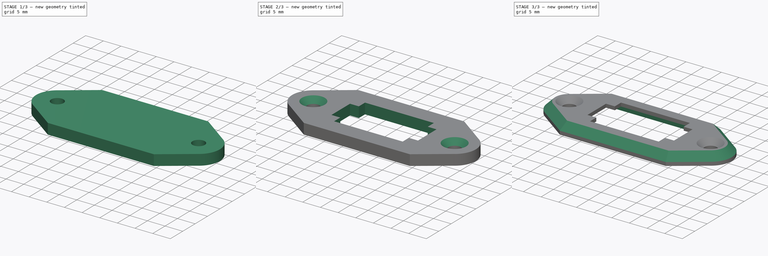
[diagram: build sequence overview — one tinted view per stage of 3, left to right]
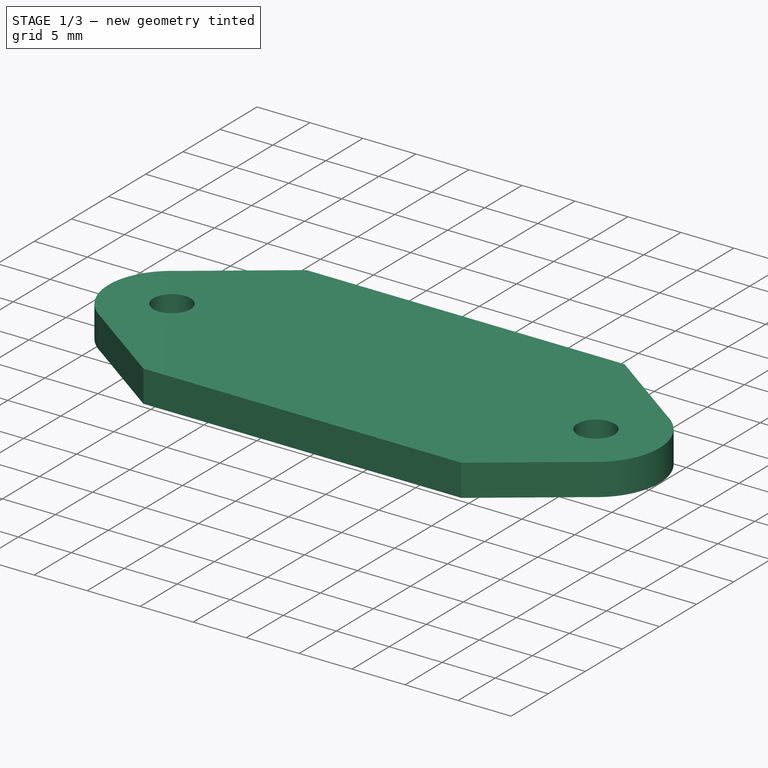
[diagram: stage 1 of 3 — iso view after this stage's code; geometry added in this stage tinted green]
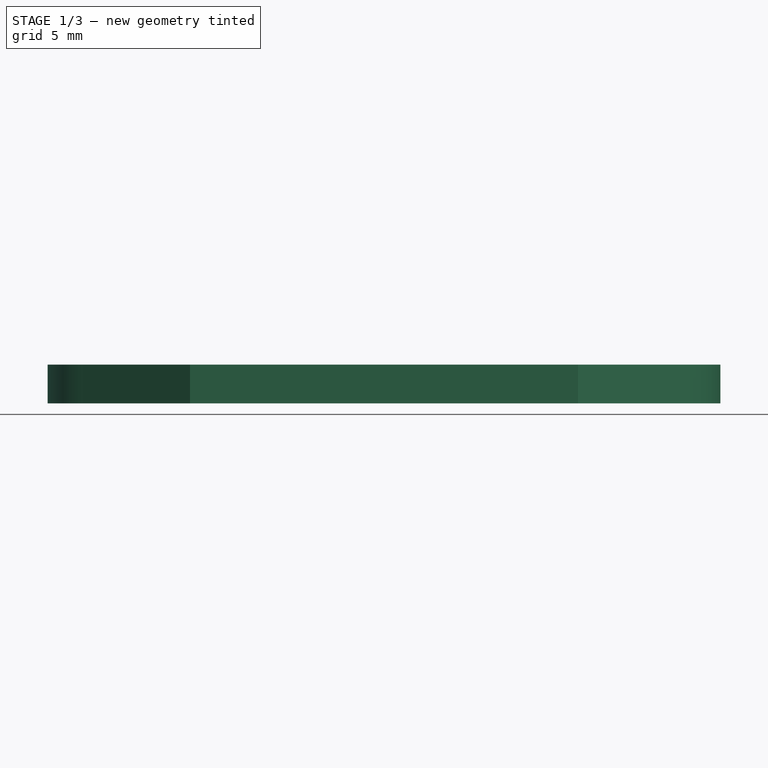
[diagram: stage 1 of 3 — front view after this stage's code; geometry added in this stage tinted green]
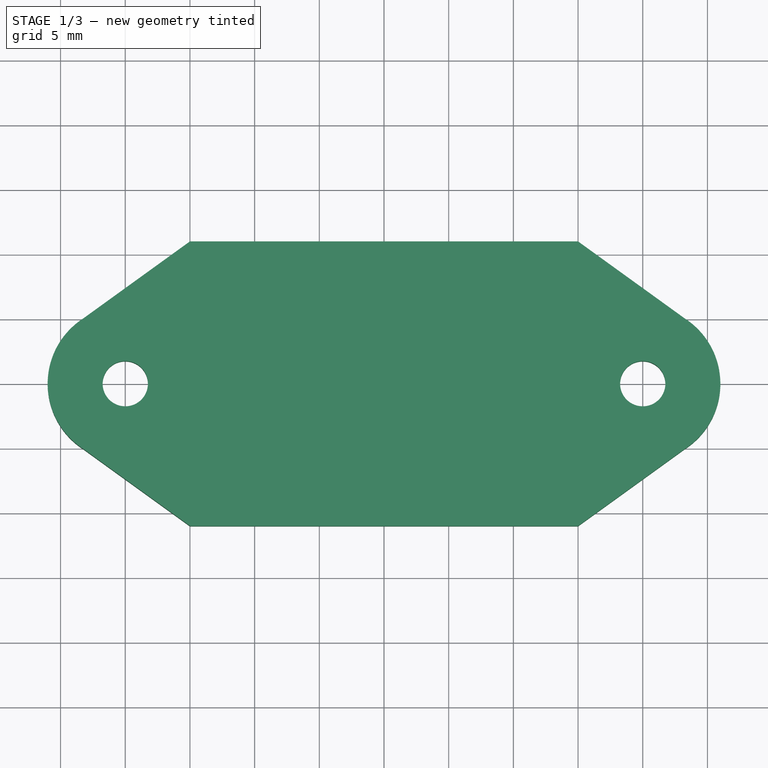
[diagram: stage 1 of 3 — top view after this stage's code; geometry added in this stage tinted green]
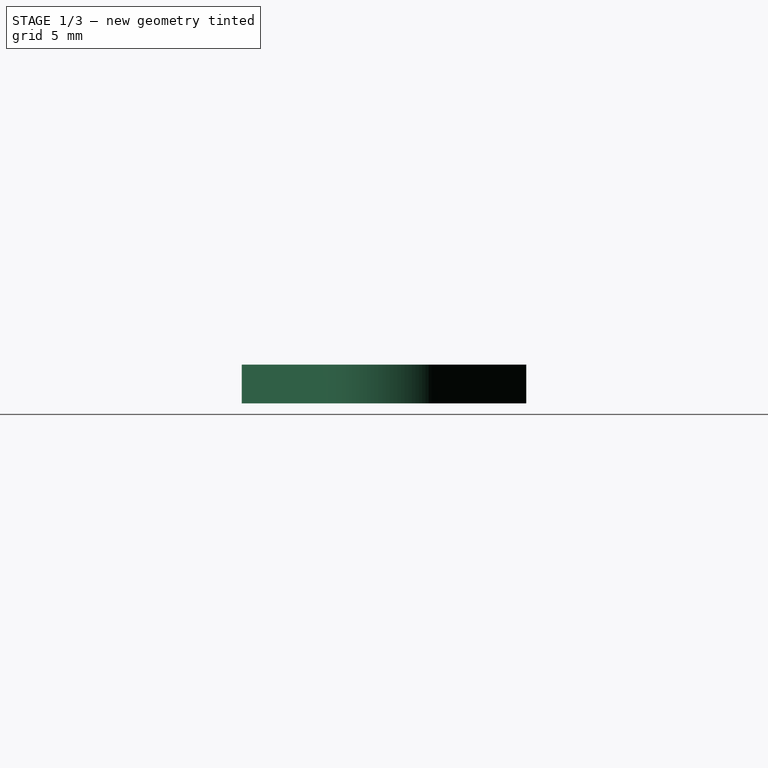
[diagram: stage 1 of 3 — right view after this stage's code; geometry added in this stage tinted green]
FCSTD DOCUMENT  (FreeCAD 0.21R33771 (Git))
Label: mounting_plate_snap_power_C8
License: All rights reserved
LicenseURL: http://en.wikipedia.org/wiki/All_rights_reserved
objects: Sketcher::SketchObject×4, PartDesign::Pocket×3, PartDesign::Chamfer×2, Spreadsheet::Sheet×1, PartDesign::Pad×1, PartDesign::Plane×1, PartDesign::Body×1
note: 18 computed .brp shape members not serialized (recipe doc carries the construction recipe); baked Part::Feature solids carry a one-line shape summary decoded from their .brp

FEATURE [Spreadsheet::Sheet] Spreadsheet
  cells = A1='plate centre X; B1(plate_centre_X)=30; C1='plate hole pitch; D1(plate_hole_pitch)=40; E1='Panel cutout inner X; F1(cutout_inner_X)=19.5; G1='panel cutout thin X; H1(thin_cutout_X)=30; A2='plate Y; B2(plate_Y)=22; C2='plate hole edge; D2(plate_hole_edge)=6; E2='Panel cutout outer X; F2(cutout_outer_X)=24.5; G2='panel cutout thin Y; H2(thin_cutout_Y)=16; A3='plate Z; B3(plate_Z)=3; C3='plate ear angle; D3(plate_ear_angle)=115; E3='Panel cutout inner Y; F3(cutout_inner_Y)=7.5; G3='panel cutout thin Z; H3(thin_cutout_Z)=1; A4='plate chamfer; B4(plate_chamfer)=2; C4='hole chamfer; D4(plate_hole_chamfer)=1.5; E4='Panel cutout outer Y; F4(cutout_outer_Y)=12.5; G7='complete thinning Z; H7(thin_pocket_depth)==plate_Z - thin_cutout_Z
FEATURE [Sketcher::SketchObject] Sketch
  FullyConstrained = true
  MapMode = 5
  Support = -> [XY_Plane]
  expr: Constraints[12] = Spreadsheet.plate_hole_edge
  expr: Constraints[13] = Spreadsheet.plate_ear_angle
  expr: Constraints[19] = Spreadsheet.plate_ear_angle
  expr: Constraints[3] = <<Spreadsheet>>.plate_Y
  expr: Constraints[4] = Spreadsheet.plate_centre_X
  expr: Constraints[7] = Spreadsheet.plate_hole_pitch
  sketch-geometry (9):
    g0: LineSegment StartX=-15 StartY=11 StartZ=0 EndX=15 EndY=11 EndZ=0
    g1: LineSegment StartX=-15 StartY=-11 StartZ=0 EndX=15 EndY=-11 EndZ=0
    g2: LineSegment StartX=-20 StartY=0 StartZ=0 EndX=20 EndY=0 EndZ=0
    g3: ArcOfCircle CenterX=-20 CenterY=0 CenterZ=0 NormalX=0 NormalY=0 NormalZ=1 AngleXU=0 Radius=6 StartAngle=2.13803 EndAngle=4.14516
    g4: LineSegment StartX=-15 StartY=11 StartZ=0 EndX=-23.2238 EndY=5.06035 EndZ=0
    g5: LineSegment StartX=-15 StartY=-11 StartZ=0 EndX=-23.2238 EndY=-5.06035 EndZ=0
    g6: ArcOfCircle CenterX=20 CenterY=0 CenterZ=0 NormalX=0 NormalY=0 NormalZ=1 AngleXU=0 Radius=6 StartAngle=5.27962 EndAngle=7.28675
    g7: LineSegment StartX=15 StartY=11 StartZ=0 EndX=23.2238 EndY=5.06035 EndZ=0
    g8: LineSegment StartX=23.2238 StartY=-5.06035 StartZ=0 EndX=15 EndY=-11 EndZ=0
  constraints (24):
    c: Symmetric(g0,g0,g-2)
    c: Symmetric(g1,g1,g-2)
    c: Symmetric(g0,g1,g-1)
    c: Distance(g0,g1) = 22
    c: Distance(g0) = 30
    c: PointOnObject(g2,g-1)
    c: Symmetric(g2,g2,g-1)
    c: Distance(g2,g2) = 40
    c: Coincident(g3,g2)
    c: Vertical(g3,g3)
    c: Coincident(g4,g0)
    c: Coincident(g4,g3)
    c: Radius(g3) = 6
    c: Angle(g3) = 2.00713
    c: Coincident(g5,g1)
    c: Coincident(g5,g3)
    c: Coincident(g6,g2)
    c: Vertical(g6,g6)
    c: Equal(g6,g3)
    c: Angle(g6) = 2.00713
    c: Coincident(g7,g0)
    c: Coincident(g7,g6)
    c: Coincident(g8,g6)
    c: Coincident(g8,g1)
FEATURE [PartDesign::Pad] Pad
  Direction = (0,0,1)
  Length = 3
  Length2 = 10
  Profile = -> Sketch
  ReferenceAxis = -> Sketch [N_Axis]
  Type = 0
  expr: Length = 3
FEATURE [PartDesign::Plane] DatumPlane  label="top_plate"
  AttachmentOffset = pos=(0,0,3) rot=(0,0,1;0rad)
  Length = 62.1162
  MapMode = 5
  Placement = pos=(0,0,3) rot=(0,0,1;0rad)
  ResizeMode = 0
  Support = -> [XY_Plane]
  Width = 60.1907
FEATURE [Sketcher::SketchObject] Sketch001
  FullyConstrained = true
  MapMode = 5
  Placement = pos=(0,0,3) rot=(0,0,1;0rad)
  Support = -> [DatumPlane]
  sketch-geometry (3):
    g0: LineSegment StartX=-20 StartY=0 StartZ=0 EndX=20 EndY=0 EndZ=0
    g1: Circle CenterX=-20 CenterY=0 CenterZ=0 NormalX=0 NormalY=0 NormalZ=1 AngleXU=0 Radius=1.75
    g2: Circle CenterX=20 CenterY=0 CenterZ=0 NormalX=0 NormalY=0 NormalZ=1 AngleXU=0 Radius=1.75
  constraints (7):
    c: Horizontal(g0)
    c: Symmetric(g0,g0,g-1)
    c: Distance(g0) = 40
    c: Coincident(g1,g0)
    c: Coincident(g2,g0)
    c: Equal(g2,g1)
    c: Diameter(g1) = 3.5
FEATURE [PartDesign::Pocket] Pocket  label="mounting_holes"
  BaseFeature = -> Pad
  Direction = (0,0,-1)
  Length = 5
  Length2 = 5
  Profile = -> Sketch001
  ReferenceAxis = -> Sketch001 [N_Axis]
  Type = 1
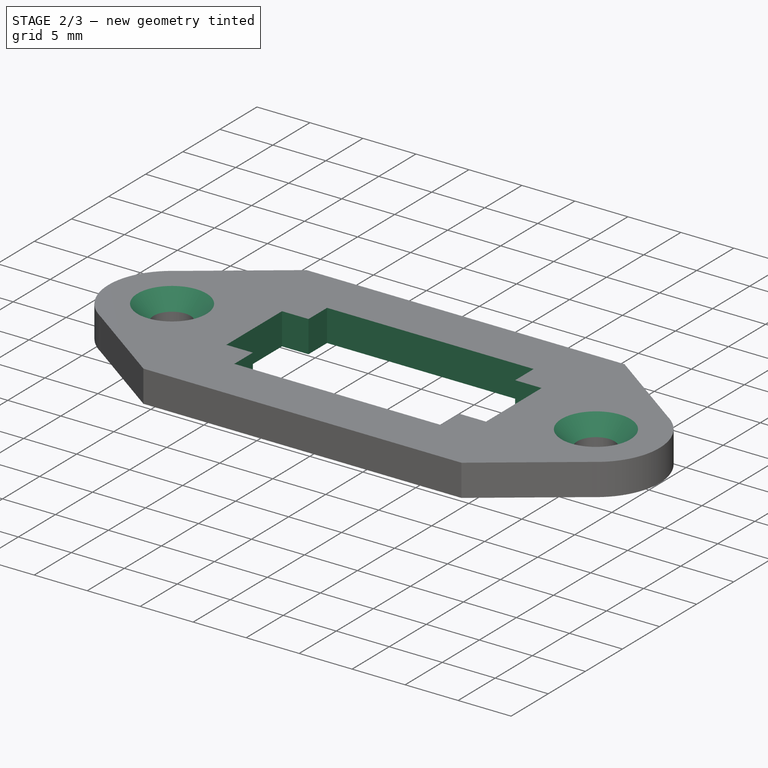
[diagram: stage 2 of 3 — iso view after this stage's code; geometry added in this stage tinted green]
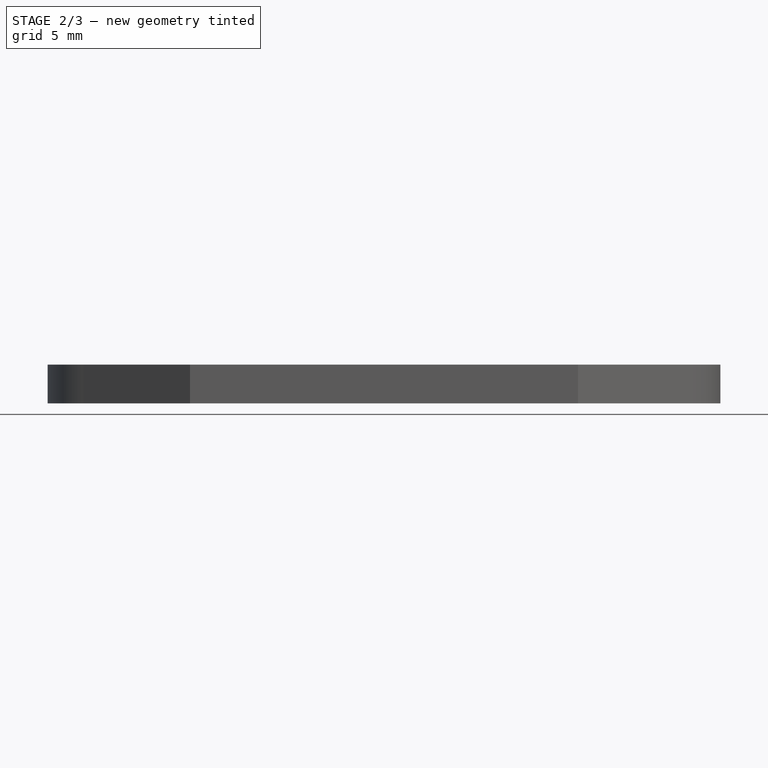
[diagram: stage 2 of 3 — front view after this stage's code; geometry added in this stage tinted green]
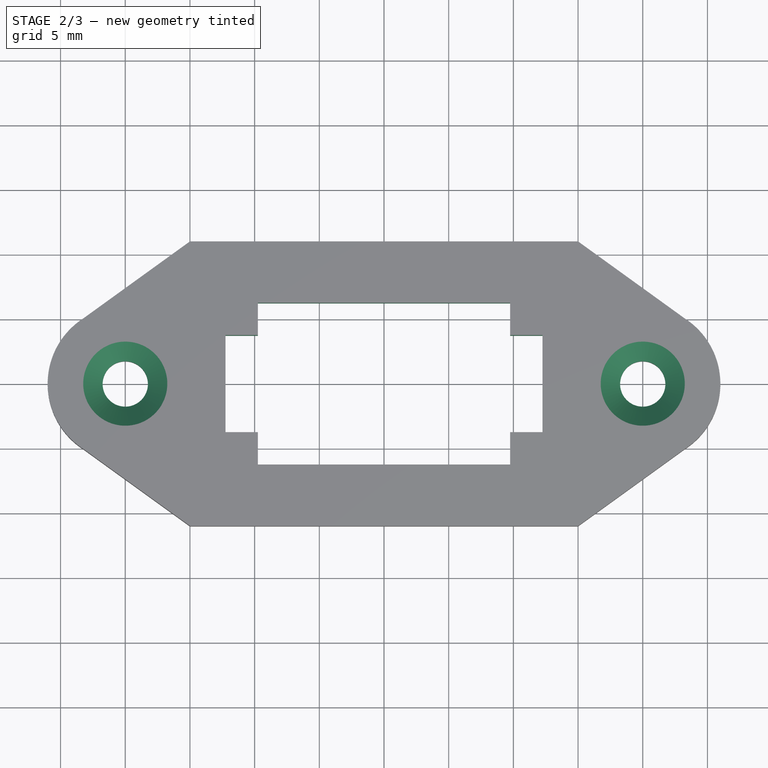
[diagram: stage 2 of 3 — top view after this stage's code; geometry added in this stage tinted green]
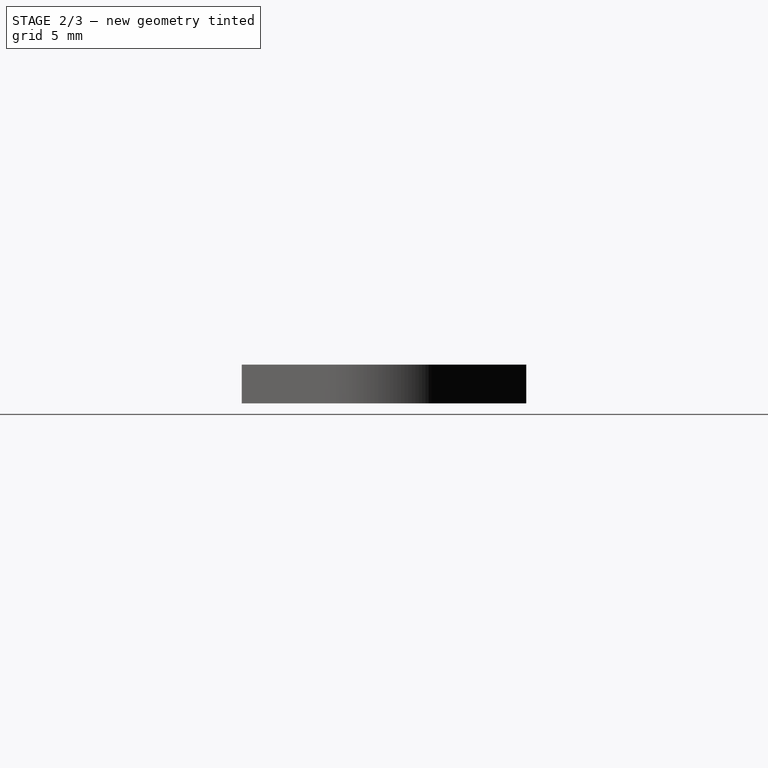
[diagram: stage 2 of 3 — right view after this stage's code; geometry added in this stage tinted green]
FEATURE [Sketcher::SketchObject] Sketch002
  FullyConstrained = true
  MapMode = 5
  Placement = pos=(0,0,3) rot=(0,0,1;0rad)
  Support = -> [DatumPlane]
  expr: Constraints[18] = Spreadsheet.cutout_outer_X
  expr: Constraints[19] = Spreadsheet.cutout_inner_X
  expr: Constraints[20] = Spreadsheet.cutout_outer_Y
  expr: Constraints[21] = Spreadsheet.cutout_inner_Y
  sketch-geometry (20):
    g0: LineSegment StartX=-9.75 StartY=6.25 StartZ=0 EndX=9.75 EndY=6.25 EndZ=0
    g1: LineSegment StartX=9.75 StartY=6.25 StartZ=0 EndX=9.75 EndY=-6.25 EndZ=0
    g2: LineSegment StartX=9.75 StartY=-6.25 StartZ=0 EndX=-9.75 EndY=-6.25 EndZ=0
    g3: LineSegment StartX=-9.75 StartY=-6.25 StartZ=0 EndX=-9.75 EndY=6.25 EndZ=0
    g4: LineSegment StartX=-12.25 StartY=3.75 StartZ=0 EndX=12.25 EndY=3.75 EndZ=0
    g5: LineSegment StartX=12.25 StartY=3.75 StartZ=0 EndX=12.25 EndY=-3.75 EndZ=0
    g6: LineSegment StartX=12.25 StartY=-3.75 StartZ=0 EndX=-12.25 EndY=-3.75 EndZ=0
    g7: LineSegment StartX=-12.25 StartY=-3.75 StartZ=0 EndX=-12.25 EndY=3.75 EndZ=0
    g8: LineSegment StartX=-9.75 StartY=6.25 StartZ=0 EndX=-9.75 EndY=3.75 EndZ=0
    g9: LineSegment StartX=-9.75 StartY=3.75 StartZ=0 EndX=-12.25 EndY=3.75 EndZ=0
    g10: LineSegment StartX=-12.25 StartY=3.75 StartZ=0 EndX=-12.25 EndY=-3.75 EndZ=0
    g11: LineSegment StartX=-12.25 StartY=-3.75 StartZ=0 EndX=-9.75 EndY=-3.75 EndZ=0
    g12: LineSegment StartX=-9.75 StartY=-3.75 StartZ=0 EndX=-9.75 EndY=-6.25 EndZ=0
    g13: LineSegment StartX=-9.75 StartY=-6.25 StartZ=0 EndX=9.75 EndY=-6.25 EndZ=0
    g14: LineSegment StartX=9.75 StartY=-6.25 StartZ=0 EndX=9.75 EndY=-3.75 EndZ=0
    g15: LineSegment StartX=9.75 StartY=-3.75 StartZ=0 EndX=12.25 EndY=-3.75 EndZ=0
    g16: LineSegment StartX=12.25 StartY=-3.75 StartZ=0 EndX=12.25 EndY=3.75 EndZ=0
    g17: LineSegment StartX=12.25 StartY=3.75 StartZ=0 EndX=9.75 EndY=3.75 EndZ=0
    g18: LineSegment StartX=9.75 StartY=3.75 StartZ=0 EndX=9.75 EndY=6.25 EndZ=0
    g19: LineSegment StartX=9.75 StartY=6.25 StartZ=0 EndX=-9.75 EndY=6.25 EndZ=0
  constraints (50):
    c: Coincident(g0,g1)
    c: Coincident(g1,g2)
    c: Coincident(g2,g3)
    c: Coincident(g3,g0)
    c: Horizontal(g0)
    c: Horizontal(g2)
    c: Vertical(g1)
    c: Vertical(g3)
    c: Coincident(g4,g5)
    c: Coincident(g5,g6)
    c: Coincident(g6,g7)
    c: Coincident(g7,g4)
    c: Horizontal(g4)
    c: Horizontal(g6)
    c: Vertical(g5)
    c: Vertical(g7)
    c: Symmetric(g4,g6,g-1)
    c: Symmetric(g0,g2,g-1)
    c: Distance(g4) = 24.5
    c: Distance(g0) = 19.5
    c: Distance(g3) = 12.5
    c: Distance(g7) = 7.5
    c: Coincident(g8,g0)
    c: PointOnObject(g8,g4)
    c: Coincident(g9,g8)
    c: Coincident(g9,g4)
    c: Coincident(g10,g9)
    c: Coincident(g10,g6)
    c: Coincident(g11,g10)
    c: PointOnObject(g11,g6)
    c: Coincident(g12,g11)
    c: Coincident(g12,g2)
    c: Coincident(g13,g12)
    c: Coincident(g13,g1)
    c: Coincident(g14,g13)
    c: PointOnObject(g14,g6)
    c: Coincident(g15,g14)
    c: Coincident(g15,g5)
    c: Coincident(g16,g15)
    c: Coincident(g16,g4)
    c: Coincident(g17,g16)
    c: PointOnObject(g17,g4)
    c: Coincident(g18,g17)
    c: Coincident(g18,g0)
    c: Coincident(g19,g18)
    c: Coincident(g19,g8)
    c: PointOnObject(g8,g3)
    c: PointOnObject(g11,g3)
    c: PointOnObject(g14,g1)
    c: PointOnObject(g17,g1)
FEATURE [PartDesign::Pocket] Pocket001  label="plug_cutout"
  BaseFeature = -> Pocket
  Direction = (0,0,-1)
  Length = 5
  Length2 = 5
  Profile = -> Sketch002
  ReferenceAxis = -> Sketch002 [N_Axis]
  Type = 1
FEATURE [PartDesign::Chamfer] Chamfer  label="hole_chamfer"
  Angle = 45
  Base = -> Pocket001 [Edge35,Edge48]
  BaseFeature = -> Pocket001
  ChamferType = 0
  FlipDirection = false
  Size = 1.5
  Size2 = 1
  SupportTransform = false
  UseAllEdges = false
  expr: Size = Spreadsheet.plate_hole_chamfer
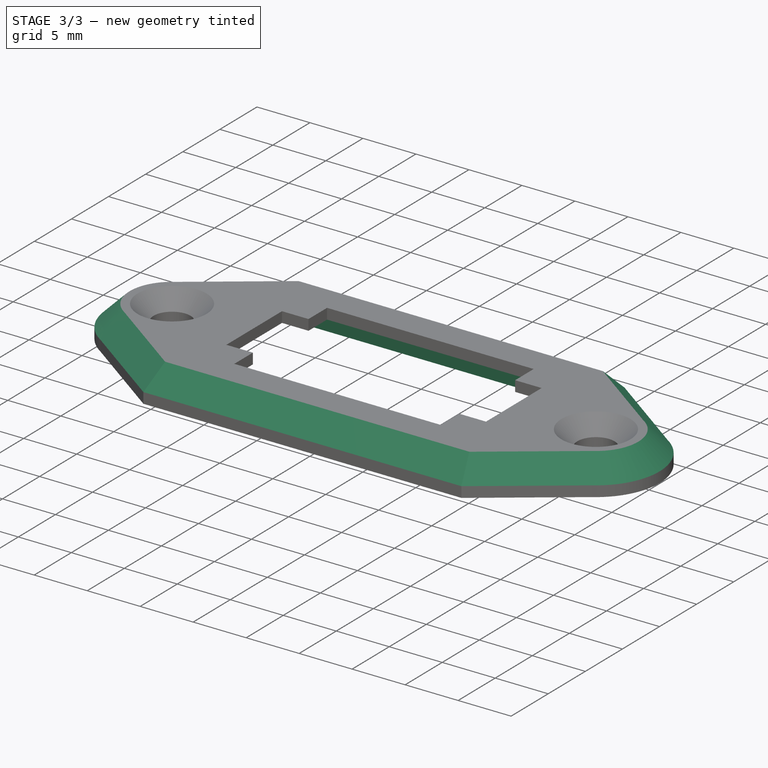
[diagram: stage 3 of 3 — iso view after this stage's code; geometry added in this stage tinted green]
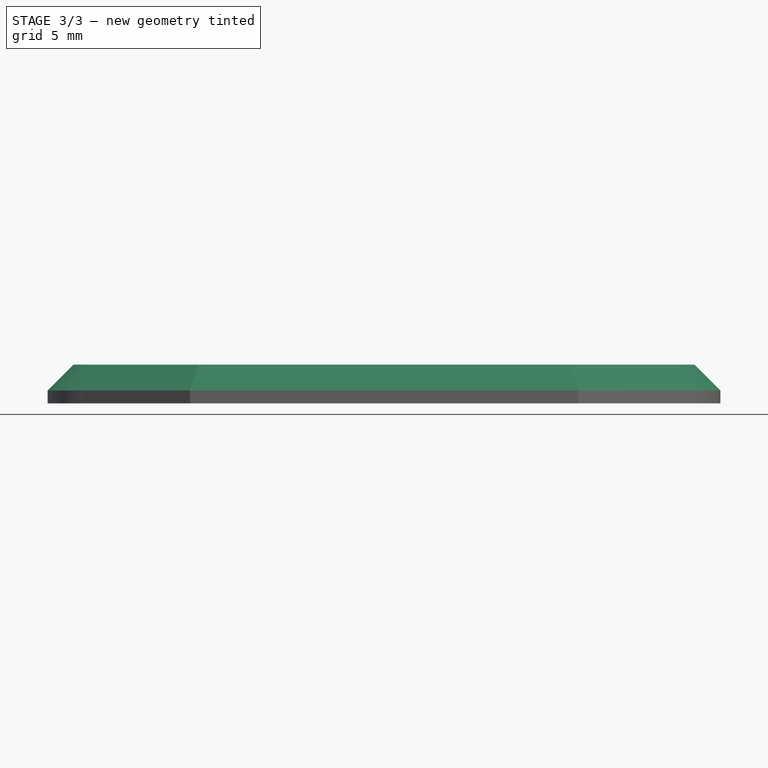
[diagram: stage 3 of 3 — front view after this stage's code; geometry added in this stage tinted green]
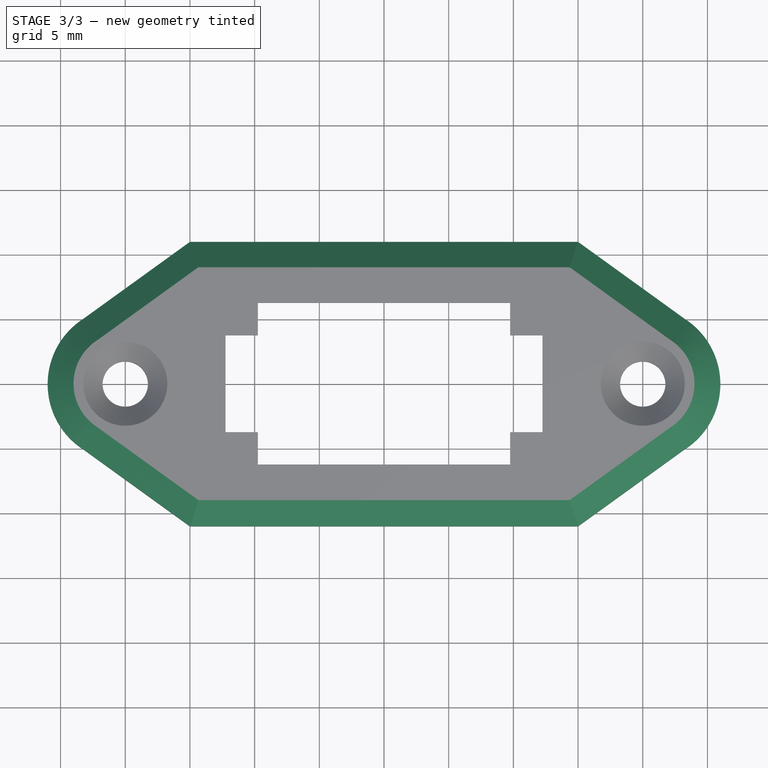
[diagram: stage 3 of 3 — top view after this stage's code; geometry added in this stage tinted green]
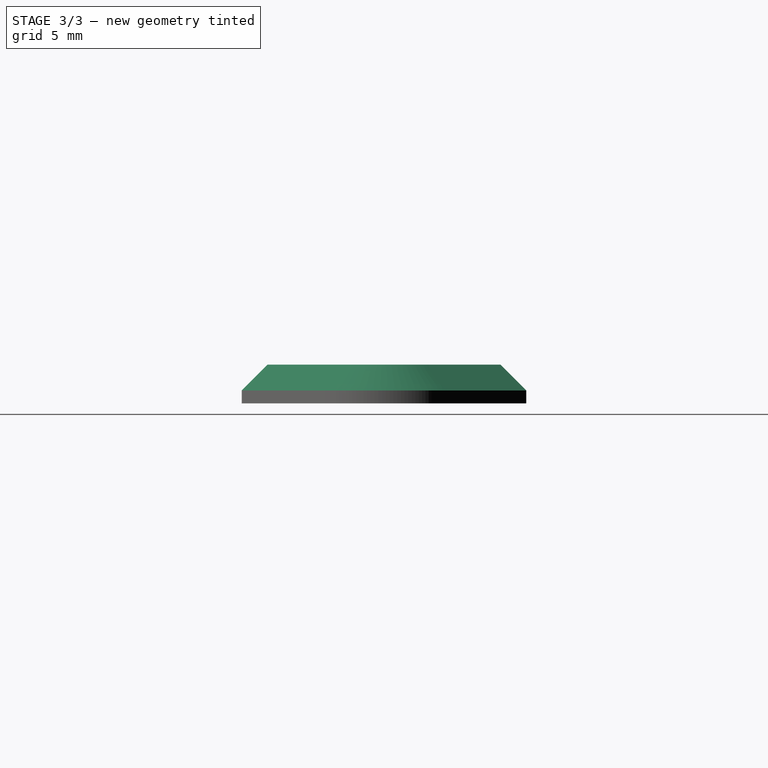
[diagram: stage 3 of 3 — right view after this stage's code; geometry added in this stage tinted green]
FEATURE [PartDesign::Chamfer] Chamfer001  label="edge_chamfer"
  Angle = 45
  Base = -> Chamfer [Edge2,Edge4,Edge6,Edge8,Edge9,Edge7,Edge5,Edge3]
  BaseFeature = -> Chamfer
  ChamferType = 0
  FlipDirection = false
  Size = 2
  Size2 = 1
  SupportTransform = false
  UseAllEdges = false
  expr: Size = Spreadsheet.plate_chamfer
FEATURE [Sketcher::SketchObject] Sketch003
  FullyConstrained = true
  MapMode = 5
  Support = -> [XY_Plane]
  expr: Constraints[10] = Spreadsheet.thin_cutout_Y
  expr: Constraints[9] = Spreadsheet.thin_cutout_X
  sketch-geometry (4):
    g0: LineSegment StartX=-15 StartY=8 StartZ=0 EndX=15 EndY=8 EndZ=0
    g1: LineSegment StartX=15 StartY=8 StartZ=0 EndX=15 EndY=-8 EndZ=0
    g2: LineSegment StartX=15 StartY=-8 StartZ=0 EndX=-15 EndY=-8 EndZ=0
    g3: LineSegment StartX=-15 StartY=-8 StartZ=0 EndX=-15 EndY=8 EndZ=0
  constraints (11):
    c: Coincident(g0,g1)
    c: Coincident(g1,g2)
    c: Coincident(g2,g3)
    c: Coincident(g3,g0)
    c: Horizontal(g0)
    c: Horizontal(g2)
    c: Vertical(g1)
    c: Vertical(g3)
    c: Symmetric(g0,g2,g-1)
    c: Distance(g0) = 30
    c: Distance(g3) = 16
FEATURE [PartDesign::Pocket] Pocket002  label="thinning"
  BaseFeature = -> Chamfer001
  Direction = (0,0,-1)
  Length = 2
  Length2 = 5
  Profile = -> Sketch003
  ReferenceAxis = -> Sketch003 [N_Axis]
  Reversed = true
  Type = 0
  expr: Length = Spreadsheet.thin_pocket_depth
FEATURE [PartDesign::Body] Body
  Group = -> [Sketch,Pad,DatumPlane,Sketch001,Pocket,Sketch002,Pocket001,Chamfer,Chamfer001,Sketch003,Pocket002]
  Origin = -> Origin
  Tip = -> Pocket002
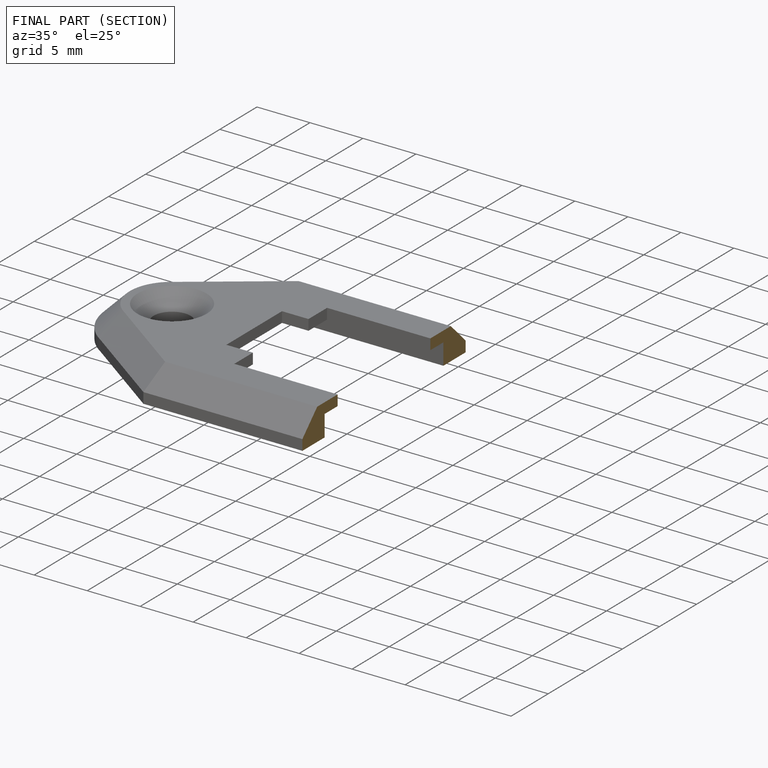
[diagram: finished part — half-section view (interior)]
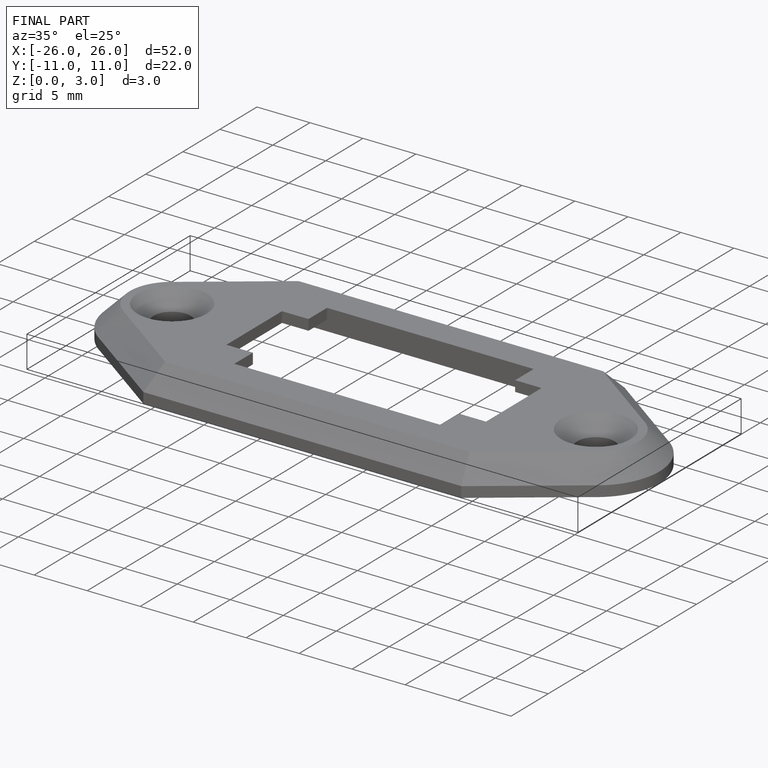
[diagram: finished part — iso view with bounding-box wireframe]
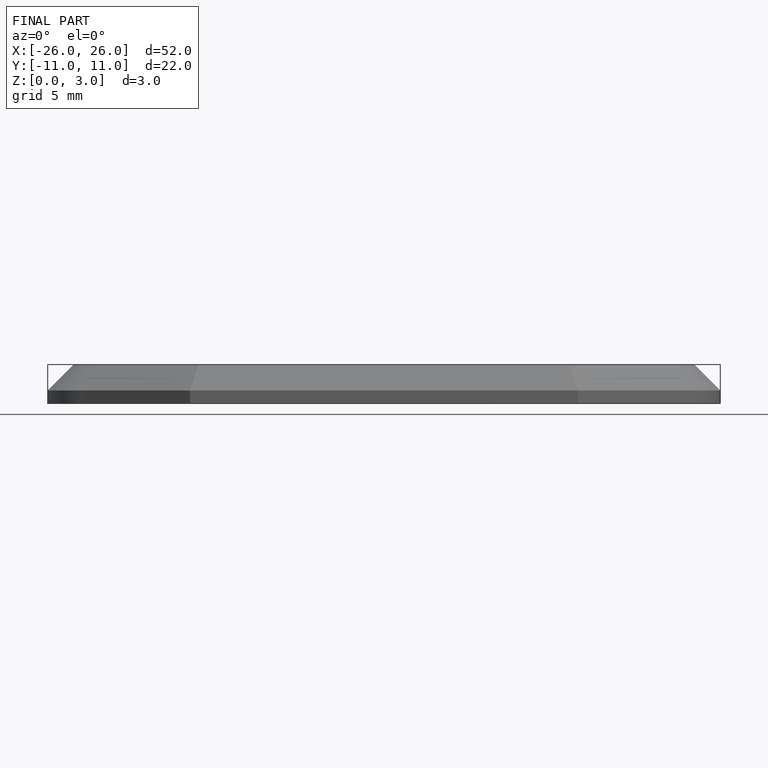
[diagram: finished part — front view with bounding-box wireframe]
